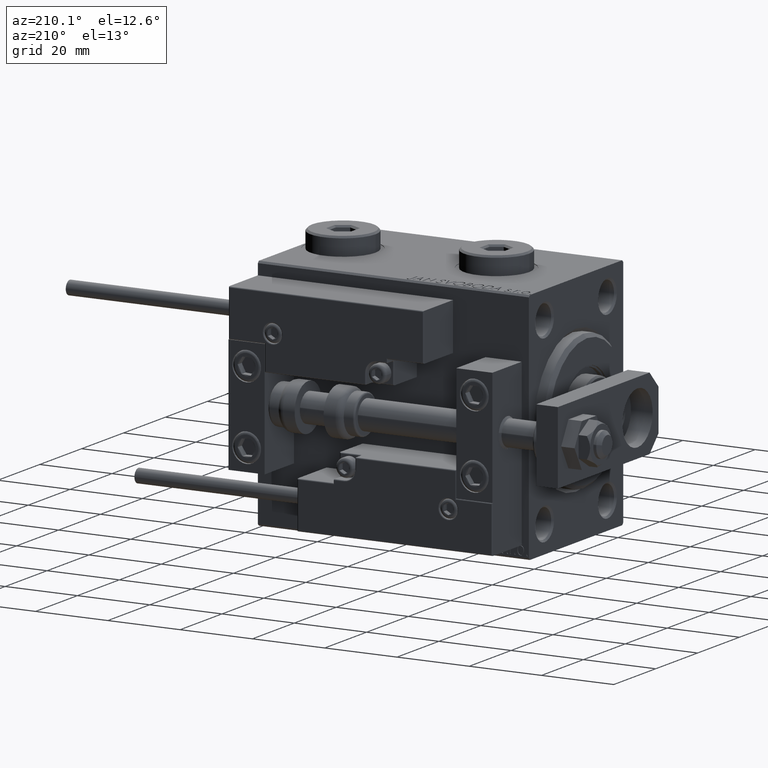
[diagram: clean part render]
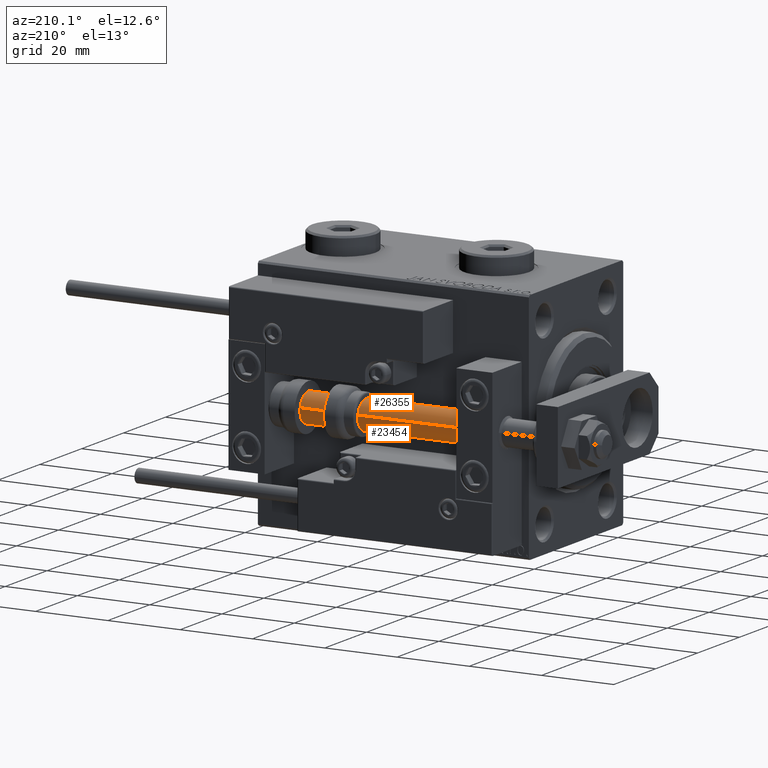
[diagram: same view with one multi-face feature highlighted, each face labeled with its STEP entity id]
A machine part, auxiliary view. The highlighted faces form ONE feature: a constant-radius fillet chain: 2 tangent blend faces with common blend radius 4 mm. The faces share edges in the B-rep.
Their STEP definitions:
[1] entity #26355 (Cylinder):
#3993 = AXIS2_PLACEMENT_3D ( 'NONE', #24446, #25224, #12449 ) ;
#5695 = VERTEX_POINT ( 'NONE', #12284 ) ;
#7271 = EDGE_LOOP ( 'NONE', ( #21347, #25070, #7661, #7432 ) ) ;
#7432 = ORIENTED_EDGE ( 'NONE', *, *, #8455, .F. ) ;
#7661 = ORIENTED_EDGE ( 'NONE', *, *, #21286, .T. ) ;
#8455 = EDGE_CURVE ( 'NONE', #42940, #35309, #9906, .T. ) ;
#9906 = LINE ( 'NONE', #33340, #26698 ) ;
#10833 = AXIS2_PLACEMENT_3D ( 'NONE', #49448, #40956, #32982 ) ;
#11812 = EDGE_CURVE ( 'NONE', #5695, #42940, #29121, .T. ) ;
#12284 = CARTESIAN_POINT ( 'NONE',  ( 4.000000000000000000, 4.898587196589412829E-16, 75.00000000000000000 ) ) ;
#12449 = DIRECTION ( 'NONE',  ( 1.000000000000000000, 0.000000000000000000, 0.000000000000000000 ) ) ;
#13346 = VECTOR ( 'NONE', #41078, 1000.000000000000000 ) ;
#16606 = LINE ( 'NONE', #49058, #13346 ) ;
#18391 = CIRCLE ( 'NONE', #3993, 4.000000000000000000 ) ;
#19180 = VERTEX_POINT ( 'NONE', #41161 ) ;
#21286 = EDGE_CURVE ( 'NONE', #19180, #35309, #18391, .T. ) ;
#21347 = ORIENTED_EDGE ( 'NONE', *, *, #11812, .F. ) ;
#21900 = EDGE_CURVE ( 'NONE', #5695, #19180, #16606, .T. ) ;
#23428 = DIRECTION ( 'NONE',  ( 0.000000000000000000, 0.000000000000000000, 1.000000000000000000 ) ) ;
#24446 = CARTESIAN_POINT ( 'NONE',  ( 0.000000000000000000, 0.000000000000000000, 2.000000000000029310 ) ) ;
#25070 = ORIENTED_EDGE ( 'NONE', *, *, #21900, .T. ) ;
#25224 = DIRECTION ( 'NONE',  ( -0.000000000000000000, -0.000000000000000000, 1.000000000000000000 ) ) ;
#26355 = ADVANCED_FACE ( 'NONE', ( #33506 ), #29506, .T. ) ;
#26698 = VECTOR ( 'NONE', #50324, 1000.000000000000000 ) ;
#29121 = CIRCLE ( 'NONE', #52043, 4.000000000000000000 ) ;
#29506 = CYLINDRICAL_SURFACE ( 'NONE', #10833, 4.000000000000000000 ) ;
#32982 = DIRECTION ( 'NONE',  ( -1.000000000000000000, 0.000000000000000000, 0.000000000000000000 ) ) ;
#33340 = CARTESIAN_POINT ( 'NONE',  ( -4.000000000000000000, 0.000000000000000000, 75.00000000000000000 ) ) ;
#33506 = FACE_OUTER_BOUND ( 'NONE', #7271, .T. ) ;
#35309 = VERTEX_POINT ( 'NONE', #39696 ) ;
#39388 = DIRECTION ( 'NONE',  ( 1.000000000000000000, 0.000000000000000000, 0.000000000000000000 ) ) ;
#39696 = CARTESIAN_POINT ( 'NONE',  ( -4.000000000000000000, 0.000000000000000000, 2.000000000000029310 ) ) ;
#40956 = DIRECTION ( 'NONE',  ( -0.000000000000000000, -0.000000000000000000, -1.000000000000000000 ) ) ;
#41078 = DIRECTION ( 'NONE',  ( -0.000000000000000000, -0.000000000000000000, -1.000000000000000000 ) ) ;
#41161 = CARTESIAN_POINT ( 'NONE',  ( 4.000000000000000000, 4.898587196589412829E-16, 2.000000000000029310 ) ) ;
#42940 = VERTEX_POINT ( 'NONE', #44710 ) ;
#44710 = CARTESIAN_POINT ( 'NONE',  ( -4.000000000000000000, 0.000000000000000000, 75.00000000000000000 ) ) ;
#49058 = CARTESIAN_POINT ( 'NONE',  ( 4.000000000000000000, 4.898587196589412829E-16, 75.00000000000000000 ) ) ;
#49448 = CARTESIAN_POINT ( 'NONE',  ( 0.000000000000000000, 0.000000000000000000, 75.00000000000000000 ) ) ;
#50324 = DIRECTION ( 'NONE',  ( -0.000000000000000000, -0.000000000000000000, -1.000000000000000000 ) ) ;
#51609 = CARTESIAN_POINT ( 'NONE',  ( 0.000000000000000000, 0.000000000000000000, 75.00000000000000000 ) ) ;
#52043 = AXIS2_PLACEMENT_3D ( 'NONE', #51609, #23428, #39388 ) ;
[2] entity #23454 (Cylinder):
#5695 = VERTEX_POINT ( 'NONE', #12284 ) ;
#6414 = CIRCLE ( 'NONE', #50549, 4.000000000000000000 ) ;
#6770 = DIRECTION ( 'NONE',  ( 1.000000000000000000, 0.000000000000000000, 0.000000000000000000 ) ) ;
#6907 = ORIENTED_EDGE ( 'NONE', *, *, #33923, .F. ) ;
#8455 = EDGE_CURVE ( 'NONE', #42940, #35309, #9906, .T. ) ;
#9906 = LINE ( 'NONE', #33340, #26698 ) ;
#10159 = ORIENTED_EDGE ( 'NONE', *, *, #8455, .T. ) ;
#12284 = CARTESIAN_POINT ( 'NONE',  ( 4.000000000000000000, 4.898587196589412829E-16, 75.00000000000000000 ) ) ;
#13346 = VECTOR ( 'NONE', #41078, 1000.000000000000000 ) ;
#13590 = DIRECTION ( 'NONE',  ( -0.000000000000000000, -0.000000000000000000, 1.000000000000000000 ) ) ;
#13638 = AXIS2_PLACEMENT_3D ( 'NONE', #39495, #30981, #6770 ) ;
#16606 = LINE ( 'NONE', #49058, #13346 ) ;
#17894 = CIRCLE ( 'NONE', #13638, 4.000000000000000000 ) ;
#17953 = EDGE_CURVE ( 'NONE', #35309, #19180, #6414, .T. ) ;
#18318 = FACE_OUTER_BOUND ( 'NONE', #30019, .T. ) ;
#19180 = VERTEX_POINT ( 'NONE', #41161 ) ;
#21797 = DIRECTION ( 'NONE',  ( -0.000000000000000000, -0.000000000000000000, -1.000000000000000000 ) ) ;
#21900 = EDGE_CURVE ( 'NONE', #5695, #19180, #16606, .T. ) ;
#23454 = ADVANCED_FACE ( 'NONE', ( #18318 ), #42011, .T. ) ;
#24802 = CARTESIAN_POINT ( 'NONE',  ( 0.000000000000000000, 0.000000000000000000, 2.000000000000029310 ) ) ;
#26698 = VECTOR ( 'NONE', #50324, 1000.000000000000000 ) ;
#26995 = AXIS2_PLACEMENT_3D ( 'NONE', #30296, #21797, #46506 ) ;
#29078 = ORIENTED_EDGE ( 'NONE', *, *, #17953, .T. ) ;
#30019 = EDGE_LOOP ( 'NONE', ( #47626, #6907, #10159, #29078 ) ) ;
#30296 = CARTESIAN_POINT ( 'NONE',  ( 0.000000000000000000, 0.000000000000000000, 75.00000000000000000 ) ) ;
#30981 = DIRECTION ( 'NONE',  ( 0.000000000000000000, 0.000000000000000000, 1.000000000000000000 ) ) ;
#33340 = CARTESIAN_POINT ( 'NONE',  ( -4.000000000000000000, 0.000000000000000000, 75.00000000000000000 ) ) ;
#33923 = EDGE_CURVE ( 'NONE', #42940, #5695, #17894, .T. ) ;
#35309 = VERTEX_POINT ( 'NONE', #39696 ) ;
#38081 = DIRECTION ( 'NONE',  ( 1.000000000000000000, 0.000000000000000000, 0.000000000000000000 ) ) ;
#39495 = CARTESIAN_POINT ( 'NONE',  ( 0.000000000000000000, 0.000000000000000000, 75.00000000000000000 ) ) ;
#39696 = CARTESIAN_POINT ( 'NONE',  ( -4.000000000000000000, 0.000000000000000000, 2.000000000000029310 ) ) ;
#41078 = DIRECTION ( 'NONE',  ( -0.000000000000000000, -0.000000000000000000, -1.000000000000000000 ) ) ;
#41161 = CARTESIAN_POINT ( 'NONE',  ( 4.000000000000000000, 4.898587196589412829E-16, 2.000000000000029310 ) ) ;
#42011 = CYLINDRICAL_SURFACE ( 'NONE', #26995, 4.000000000000000000 ) ;
#42940 = VERTEX_POINT ( 'NONE', #44710 ) ;
#44710 = CARTESIAN_POINT ( 'NONE',  ( -4.000000000000000000, 0.000000000000000000, 75.00000000000000000 ) ) ;
#46506 = DIRECTION ( 'NONE',  ( -1.000000000000000000, 0.000000000000000000, 0.000000000000000000 ) ) ;
#47626 = ORIENTED_EDGE ( 'NONE', *, *, #21900, .F. ) ;
#49058 = CARTESIAN_POINT ( 'NONE',  ( 4.000000000000000000, 4.898587196589412829E-16, 75.00000000000000000 ) ) ;
#50324 = DIRECTION ( 'NONE',  ( -0.000000000000000000, -0.000000000000000000, -1.000000000000000000 ) ) ;
#50549 = AXIS2_PLACEMENT_3D ( 'NONE', #24802, #13590, #38081 ) ;